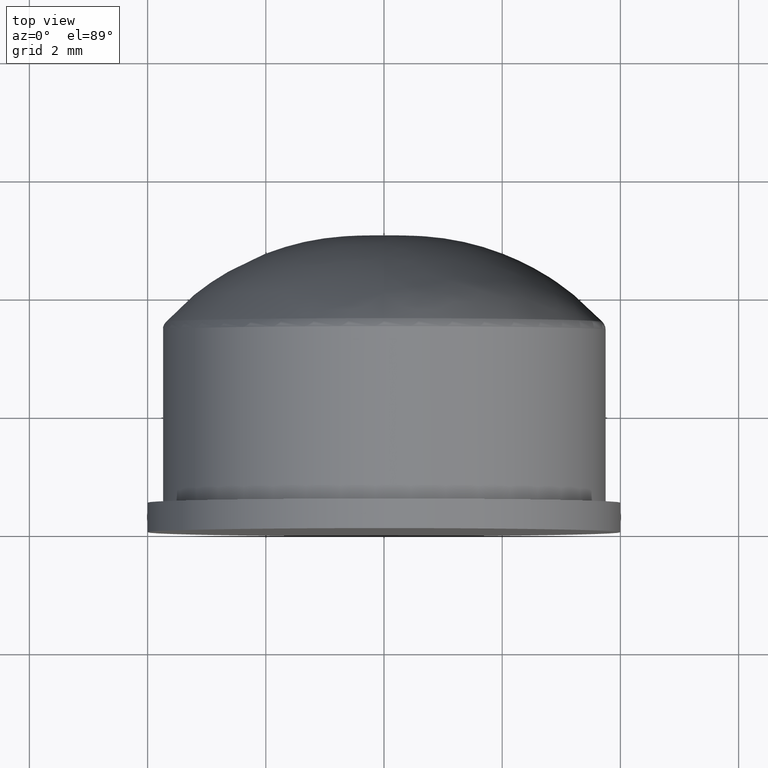
[diagram: clean part render]
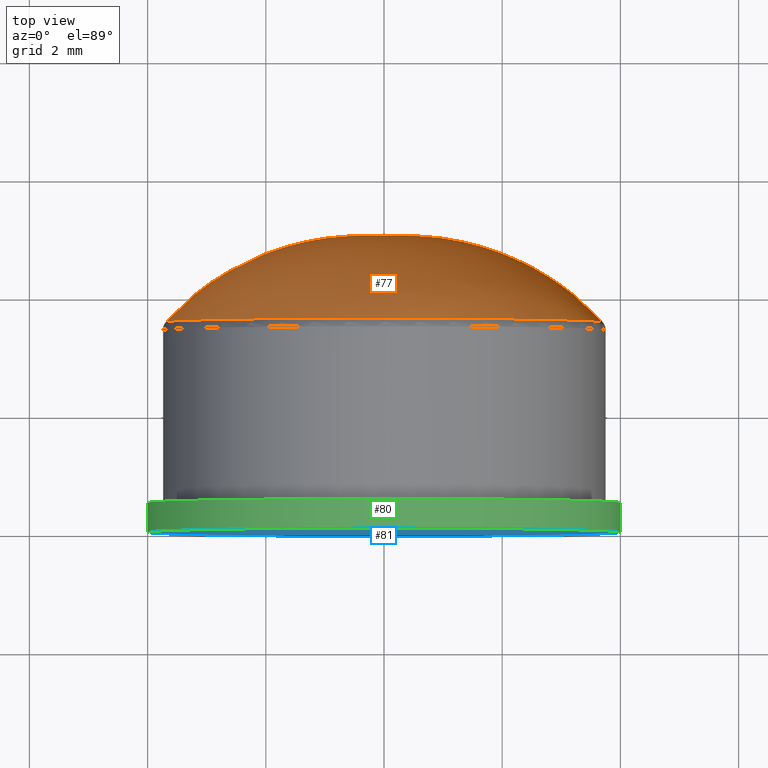
[diagram: same view with three faces highlighted in distinct colors, each labeled with its STEP entity id]
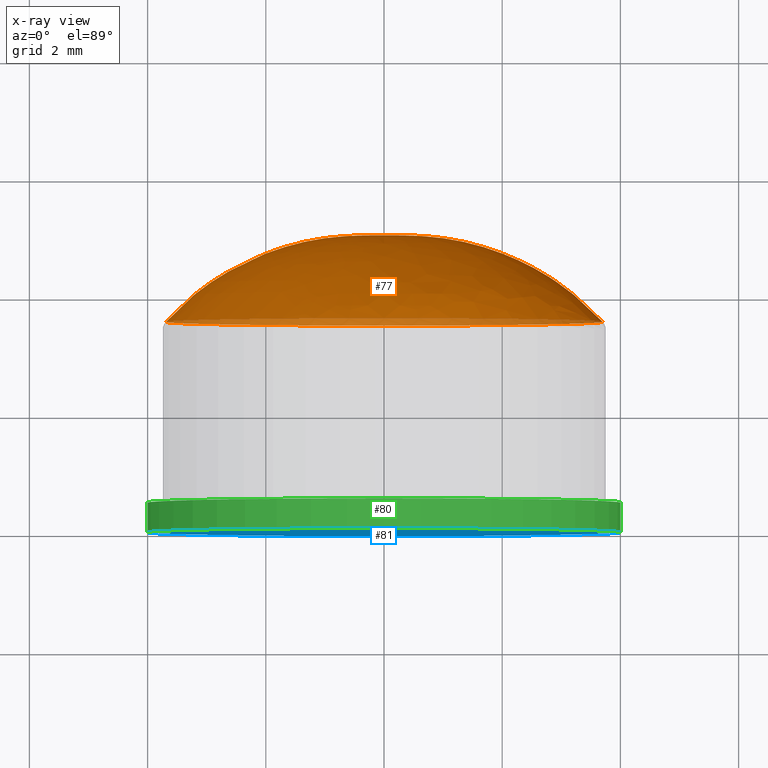
[diagram: x-ray of the same camera — body ghosted, the three highlighted faces saturated]
A machine part, top view with three faces highlighted in distinct colors.
The next image is the same camera in x-ray (body ghosted, the three faces saturated) — at least one of them is partly hidden behind the body in this view.
Their STEP definitions:

[orange] entity #77 — the highlighted face is a freeform B-spline surface patch.
#19=(
BOUNDED_CURVE()
B_SPLINE_CURVE(2,(#155,#156,#157),.UNSPECIFIED.,.F.,.F.)
B_SPLINE_CURVE_WITH_KNOTS((3,3),(0.742374724795534,1.6556714185691),
 .UNSPECIFIED.)
CURVE()
GEOMETRIC_REPRESENTATION_ITEM()
RATIONAL_B_SPLINE_CURVE((1.,0.897535421861127,1.))
REPRESENTATION_ITEM('')
);
#20=(
BOUNDED_SURFACE()
B_SPLINE_SURFACE(2,2,((#127,#128,#129,#130,#131,#132,#133,#134,#135),(#136,
#137,#138,#139,#140,#141,#142,#143,#144),(#145,#146,#147,#148,#149,#150,
#151,#152,#153)),.UNSPECIFIED.,.F.,.T.,.F.)
B_SPLINE_SURFACE_WITH_KNOTS((3,3),(3,2,2,2,3),(-1.6556714185691,-0.742374724795534),
(-3.14159265358979,-1.5707963267949,0.,1.5707963267949,3.14159265358979),
 .UNSPECIFIED.)
GEOMETRIC_REPRESENTATION_ITEM()
RATIONAL_B_SPLINE_SURFACE(((1.,0.707106781186548,1.,0.707106781186548,1.,
0.707106781186548,1.,0.707106781186548,1.),(0.897535421861127,0.634653383153132,
0.897535421861127,0.634653383153132,0.897535421861127,0.634653383153132,
0.897535421861127,0.634653383153132,0.897535421861127),(1.,0.707106781186548,
1.,0.707106781186548,1.,0.707106781186548,1.,0.707106781186548,1.)))
REPRESENTATION_ITEM('')
SURFACE()
);
#26=FACE_OUTER_BOUND('',#33,.T.);
#33=EDGE_LOOP('',(#64,#65,#66,#67));
#41=CIRCLE('',#85,3.6973730459566);
#42=CIRCLE('',#86,3.6973730459566);
#47=VERTEX_POINT('',#121);
#48=VERTEX_POINT('',#122);
#50=VERTEX_POINT('',#154);
#54=EDGE_CURVE('',#47,#48,#41,.T.);
#55=EDGE_CURVE('',#48,#47,#42,.T.);
#57=EDGE_CURVE('',#48,#50,#19,.T.);
#64=ORIENTED_EDGE('',*,*,#54,.F.);
#65=ORIENTED_EDGE('',*,*,#55,.F.);
#66=ORIENTED_EDGE('',*,*,#57,.T.);
#67=ORIENTED_EDGE('',*,*,#57,.F.);
#77=ADVANCED_FACE('',(#26),#20,.F.);
#85=AXIS2_PLACEMENT_3D('',#123,#99,#100);
#86=AXIS2_PLACEMENT_3D('',#124,#101,#102);
#99=DIRECTION('center_axis',(3.33066907387547E-16,-1.,0.));
#100=DIRECTION('ref_axis',(-1.,-3.00273467357934E-16,1.22464679914735E-16));
#101=DIRECTION('center_axis',(3.33066907387547E-16,-1.,0.));
#102=DIRECTION('ref_axis',(-1.,-3.00273467357934E-16,1.22464679914735E-16));
#121=CARTESIAN_POINT('',(3.6973730459566,3.55837728725455,-6.16297582203915E-32));
#122=CARTESIAN_POINT('',(-1.18517771838396E-15,3.55837728725455,3.6973730459566));
#123=CARTESIAN_POINT('Origin',(-1.18517771838396E-15,3.55837728725455,0.));
#124=CARTESIAN_POINT('Origin',(-1.18517771838396E-15,3.55837728725455,0.));
#127=CARTESIAN_POINT('Ctrl Pts',(-1.66533453693773E-15,5.,-6.93889390390723E-17));
#128=CARTESIAN_POINT('Ctrl Pts',(-1.59594559789866E-15,5.,-6.9388939039072E-17));
#129=CARTESIAN_POINT('Ctrl Pts',(-1.59594559789866E-15,5.,2.46519032881566E-31));
#130=CARTESIAN_POINT('Ctrl Pts',(-1.59594559789866E-15,5.,6.93889390390725E-17));
#131=CARTESIAN_POINT('Ctrl Pts',(-1.66533453693773E-15,5.,6.93889390390723E-17));
#132=CARTESIAN_POINT('Ctrl Pts',(-1.73472347597681E-15,5.,6.9388939039072E-17));
#133=CARTESIAN_POINT('Ctrl Pts',(-1.73472347597681E-15,5.,-2.46519032881566E-31));
#134=CARTESIAN_POINT('Ctrl Pts',(-1.73472347597681E-15,5.,-6.93889390390725E-17));
#135=CARTESIAN_POINT('Ctrl Pts',(-1.66533453693773E-15,5.,-6.93889390390723E-17));
#136=CARTESIAN_POINT('Ctrl Pts',(-1.7277558542482E-15,5.18741374758626,
2.20280765759974));
#137=CARTESIAN_POINT('Ctrl Pts',(-2.20280765759974,5.18741374758626,2.20280765759974));
#138=CARTESIAN_POINT('Ctrl Pts',(-2.20280765759974,5.18741374758626,2.46519032881566E-31));
#139=CARTESIAN_POINT('Ctrl Pts',(-2.20280765759974,5.18741374758626,-2.20280765759974));
#140=CARTESIAN_POINT('Ctrl Pts',(-1.7277558542482E-15,5.18741374758626,
-2.20280765759974));
#141=CARTESIAN_POINT('Ctrl Pts',(2.20280765759974,5.18741374758626,-2.20280765759974));
#142=CARTESIAN_POINT('Ctrl Pts',(2.20280765759974,5.18741374758626,-2.46519032881566E-31));
#143=CARTESIAN_POINT('Ctrl Pts',(2.20280765759974,5.18741374758626,2.20280765759974));
#144=CARTESIAN_POINT('Ctrl Pts',(-1.7277558542482E-15,5.18741374758626,
2.20280765759974));
#145=CARTESIAN_POINT('Ctrl Pts',(-1.18517771838396E-15,3.55837728725455,
3.6973730459566));
#146=CARTESIAN_POINT('Ctrl Pts',(-3.6973730459566,3.55837728725455,3.6973730459566));
#147=CARTESIAN_POINT('Ctrl Pts',(-3.69737304595661,3.55837728725455,0.));
#148=CARTESIAN_POINT('Ctrl Pts',(-3.6973730459566,3.55837728725455,-3.6973730459566));
#149=CARTESIAN_POINT('Ctrl Pts',(-1.18517771838396E-15,3.55837728725455,
-3.6973730459566));
#150=CARTESIAN_POINT('Ctrl Pts',(3.6973730459566,3.55837728725455,-3.6973730459566));
#151=CARTESIAN_POINT('Ctrl Pts',(3.6973730459566,3.55837728725455,0.));
#152=CARTESIAN_POINT('Ctrl Pts',(3.6973730459566,3.55837728725455,3.6973730459566));
#153=CARTESIAN_POINT('Ctrl Pts',(-1.18517771838396E-15,3.55837728725455,
3.6973730459566));
#154=CARTESIAN_POINT('',(-1.66533453693773E-15,5.,0.));
#155=CARTESIAN_POINT('Ctrl Pts',(-1.18517771838396E-15,3.55837728725455,
3.6973730459566));
#156=CARTESIAN_POINT('Ctrl Pts',(-1.7277558542482E-15,5.18741374758626,
2.20280765759974));
#157=CARTESIAN_POINT('Ctrl Pts',(-1.66533453693773E-15,5.,-6.93889390390723E-17));

[blue] entity #81 — the highlighted planar face has unit normal (0, -1, 0).
#16=PLANE('',#94);
#30=FACE_OUTER_BOUND('',#40,.T.);
#40=EDGE_LOOP('',(#74));
#46=CIRCLE('',#93,4.);
#53=VERTEX_POINT('',#165);
#60=EDGE_CURVE('',#53,#53,#46,.T.);
#74=ORIENTED_EDGE('',*,*,#60,.T.);
#81=ADVANCED_FACE('',(#30),#16,.T.);
#93=AXIS2_PLACEMENT_3D('',#166,#115,#116);
#94=AXIS2_PLACEMENT_3D('',#167,#117,#118);
#115=DIRECTION('center_axis',(3.33066907387547E-16,-1.,0.));
#116=DIRECTION('ref_axis',(1.,3.33066907387547E-16,0.));
#117=DIRECTION('center_axis',(3.33066907387547E-16,-1.,0.));
#118=DIRECTION('ref_axis',(0.,0.,-1.));
#165=CARTESIAN_POINT('',(4.,0.,0.));
#166=CARTESIAN_POINT('Origin',(3.20474742746036E-31,-1.33226762955019E-15,
0.));
#167=CARTESIAN_POINT('Origin',(0.,0.,0.));

[green] entity #80 — the highlighted cylindrical surface (bore or boss wall) has radius 4 mm, axis along (0, -1, 0).
#18=CYLINDRICAL_SURFACE('',#92,4.);
#24=FACE_BOUND('',#39,.T.);
#29=FACE_OUTER_BOUND('',#38,.T.);
#38=EDGE_LOOP('',(#72));
#39=EDGE_LOOP('',(#73));
#45=CIRCLE('',#91,4.);
#46=CIRCLE('',#93,4.);
#52=VERTEX_POINT('',#162);
#53=VERTEX_POINT('',#165);
#59=EDGE_CURVE('',#52,#52,#45,.T.);
#60=EDGE_CURVE('',#53,#53,#46,.T.);
#72=ORIENTED_EDGE('',*,*,#59,.T.);
#73=ORIENTED_EDGE('',*,*,#60,.F.);
#80=ADVANCED_FACE('',(#29,#24),#18,.T.);
#91=AXIS2_PLACEMENT_3D('',#163,#111,#112);
#92=AXIS2_PLACEMENT_3D('',#164,#113,#114);
#93=AXIS2_PLACEMENT_3D('',#166,#115,#116);
#111=DIRECTION('center_axis',(3.33066907387547E-16,-1.,0.));
#112=DIRECTION('ref_axis',(1.,3.33066907387547E-16,0.));
#113=DIRECTION('center_axis',(3.33066907387547E-16,-1.,0.));
#114=DIRECTION('ref_axis',(1.,6.39024356686511E-16,0.));
#115=DIRECTION('center_axis',(3.33066907387547E-16,-1.,0.));
#116=DIRECTION('ref_axis',(1.,3.33066907387547E-16,0.));
#162=CARTESIAN_POINT('',(4.,0.5,0.));
#163=CARTESIAN_POINT('Origin',(-1.66533453693773E-16,0.499999999999999,
0.));
#164=CARTESIAN_POINT('Origin',(-8.32667268468864E-17,0.249999999999999,
0.));
#165=CARTESIAN_POINT('',(4.,0.,0.));
#166=CARTESIAN_POINT('Origin',(3.20474742746036E-31,-1.33226762955019E-15,
0.));